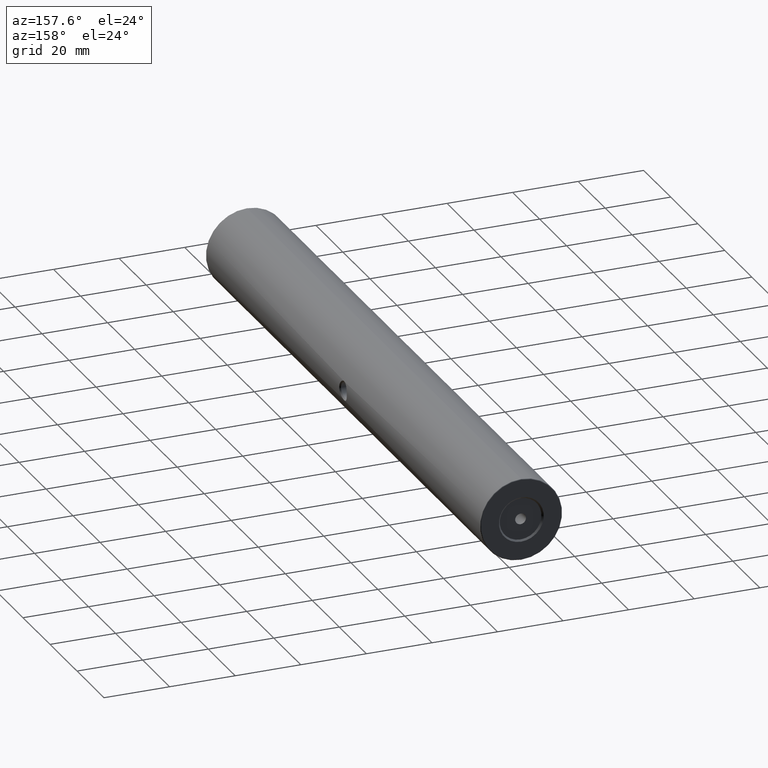
[diagram: clean part render]
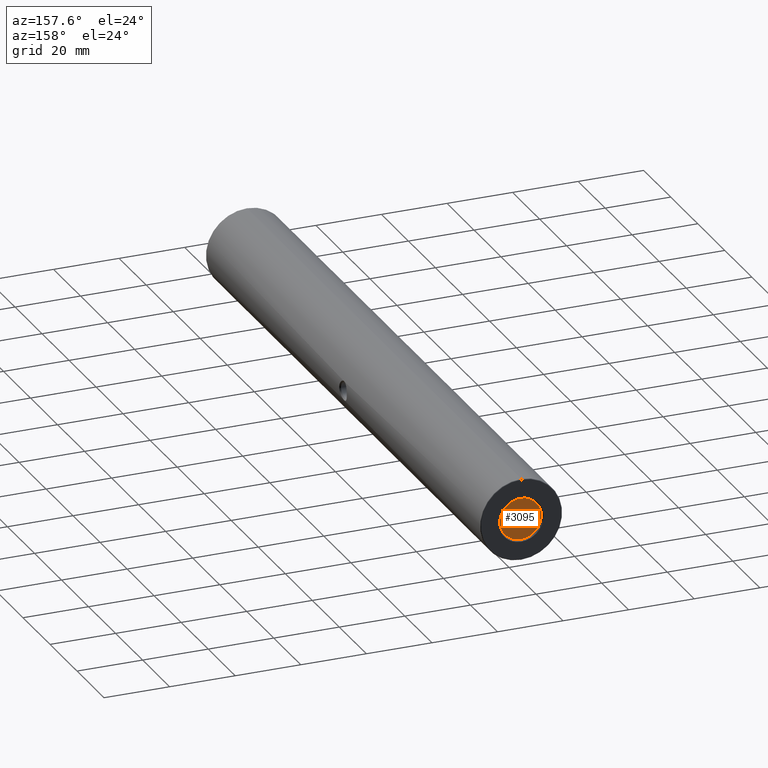
[diagram: same view with one face highlighted and labeled with its STEP entity id]
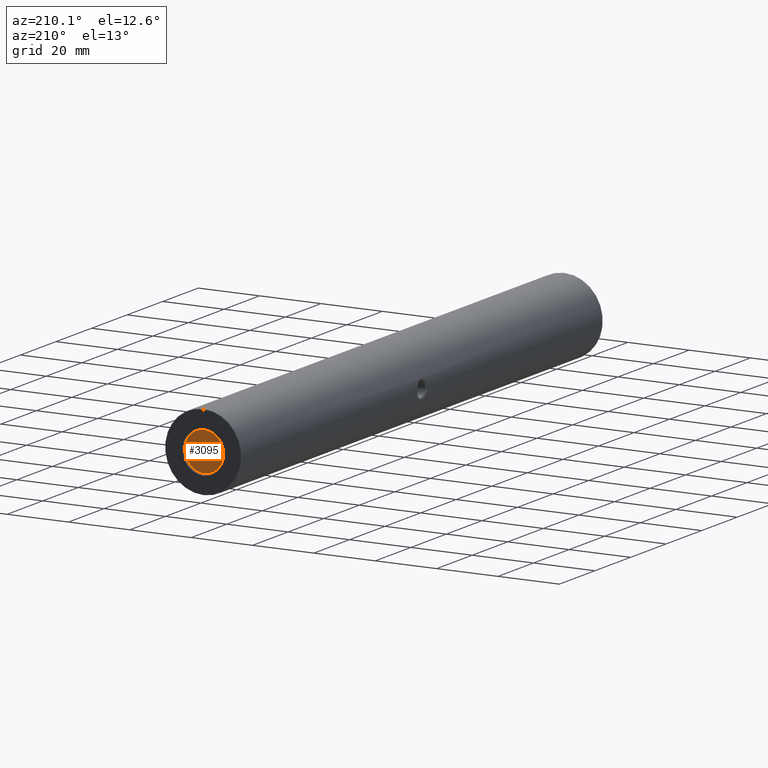
[diagram: same view with one face highlighted and labeled with its STEP entity id]
A machine part, auxiliary view. The second image highlights one B-rep face of the part: STEP entity #3095.
A second angle (auxiliary view) of the same face is appended — the face is thin or edge-on in the first view.
In plain terms, the highlighted planar face has unit normal (0, 1, 0).
Its self-contained STEP definition (entity closure, byte-faithful):
#15 = DIRECTION ( 'NONE',  ( 0.0000000000000000000, 0.0000000000000000000, 1.000000000000000000 ) ) ;
#105 = AXIS2_PLACEMENT_3D ( 'NONE', #2561, #1012, #1231 ) ;
#166 = DIRECTION ( 'NONE',  ( 0.0000000000000000000, 1.000000000000000000, 0.0000000000000000000 ) ) ;
#168 = ORIENTED_EDGE ( 'NONE', *, *, #1979, .T. ) ;
#213 = CIRCLE ( 'NONE', #2505, 1.649999999999998579 ) ;
#241 = AXIS2_PLACEMENT_3D ( 'NONE', #2901, #1828, #15 ) ;
#373 = VERTEX_POINT ( 'NONE', #3139 ) ;
#389 = EDGE_LOOP ( 'NONE', ( #1104, #3322 ) ) ;
#446 = DIRECTION ( 'NONE',  ( 0.0000000000000000000, 1.000000000000000000, 0.0000000000000000000 ) ) ;
#543 = AXIS2_PLACEMENT_3D ( 'NONE', #1473, #166, #2578 ) ;
#932 = CARTESIAN_POINT ( 'NONE',  ( -22.50520183104453409, 102.4982521847693846, 56.35000000000000142 ) ) ;
#1012 = DIRECTION ( 'NONE',  ( 0.0000000000000000000, 1.000000000000000000, 0.0000000000000000000 ) ) ;
#1104 = ORIENTED_EDGE ( 'NONE', *, *, #3450, .F. ) ;
#1216 = VERTEX_POINT ( 'NONE', #2699 ) ;
#1231 = DIRECTION ( 'NONE',  ( 0.0000000000000000000, 0.0000000000000000000, 1.000000000000000000 ) ) ;
#1278 = CARTESIAN_POINT ( 'NONE',  ( -22.50520183104453409, 102.4982521847693846, 50.00000000000000000 ) ) ;
#1297 = CIRCLE ( 'NONE', #241, 6.350000000000001421 ) ;
#1473 = CARTESIAN_POINT ( 'NONE',  ( -22.50520183104453409, 102.4982521847693846, 50.00000000000000000 ) ) ;
#1536 = PLANE ( 'NONE',  #2735 ) ;
#1684 = ORIENTED_EDGE ( 'NONE', *, *, #3299, .T. ) ;
#1717 = FACE_BOUND ( 'NONE', #389, .T. ) ;
#1828 = DIRECTION ( 'NONE',  ( 0.0000000000000000000, 1.000000000000000000, 0.0000000000000000000 ) ) ;
#1940 = CIRCLE ( 'NONE', #543, 6.350000000000001421 ) ;
#1979 = EDGE_CURVE ( 'NONE', #2088, #3044, #1297, .T. ) ;
#2027 = DIRECTION ( 'NONE',  ( 0.0000000000000000000, 0.0000000000000000000, 1.000000000000000000 ) ) ;
#2043 = DIRECTION ( 'NONE',  ( 0.0000000000000000000, 1.000000000000000000, 0.0000000000000000000 ) ) ;
#2088 = VERTEX_POINT ( 'NONE', #2195 ) ;
#2160 = CIRCLE ( 'NONE', #105, 1.649999999999998579 ) ;
#2195 = CARTESIAN_POINT ( 'NONE',  ( -22.50520183104453409, 102.4982521847693846, 43.64999999999999858 ) ) ;
#2221 = FACE_OUTER_BOUND ( 'NONE', #3023, .T. ) ;
#2505 = AXIS2_PLACEMENT_3D ( 'NONE', #2823, #2043, #2027 ) ;
#2561 = CARTESIAN_POINT ( 'NONE',  ( -22.50520183104453409, 102.4982521847693846, 50.00000000000000000 ) ) ;
#2578 = DIRECTION ( 'NONE',  ( 0.0000000000000000000, 0.0000000000000000000, 1.000000000000000000 ) ) ;
#2699 = CARTESIAN_POINT ( 'NONE',  ( -22.50520183104453409, 102.4982521847693846, 51.64999999999999858 ) ) ;
#2735 = AXIS2_PLACEMENT_3D ( 'NONE', #1278, #446, #3116 ) ;
#2823 = CARTESIAN_POINT ( 'NONE',  ( -22.50520183104453409, 102.4982521847693846, 50.00000000000000000 ) ) ;
#2901 = CARTESIAN_POINT ( 'NONE',  ( -22.50520183104453409, 102.4982521847693846, 50.00000000000000000 ) ) ;
#3023 = EDGE_LOOP ( 'NONE', ( #1684, #168 ) ) ;
#3044 = VERTEX_POINT ( 'NONE', #932 ) ;
#3095 = ADVANCED_FACE ( 'NONE', ( #1717, #2221 ), #1536, .T. ) ;
#3116 = DIRECTION ( 'NONE',  ( 0.0000000000000000000, -0.0000000000000000000, 1.000000000000000000 ) ) ;
#3139 = CARTESIAN_POINT ( 'NONE',  ( -22.50520183104453409, 102.4982521847693846, 48.35000000000000142 ) ) ;
#3257 = EDGE_CURVE ( 'NONE', #373, #1216, #213, .T. ) ;
#3299 = EDGE_CURVE ( 'NONE', #3044, #2088, #1940, .T. ) ;
#3322 = ORIENTED_EDGE ( 'NONE', *, *, #3257, .F. ) ;
#3450 = EDGE_CURVE ( 'NONE', #1216, #373, #2160, .T. ) ;